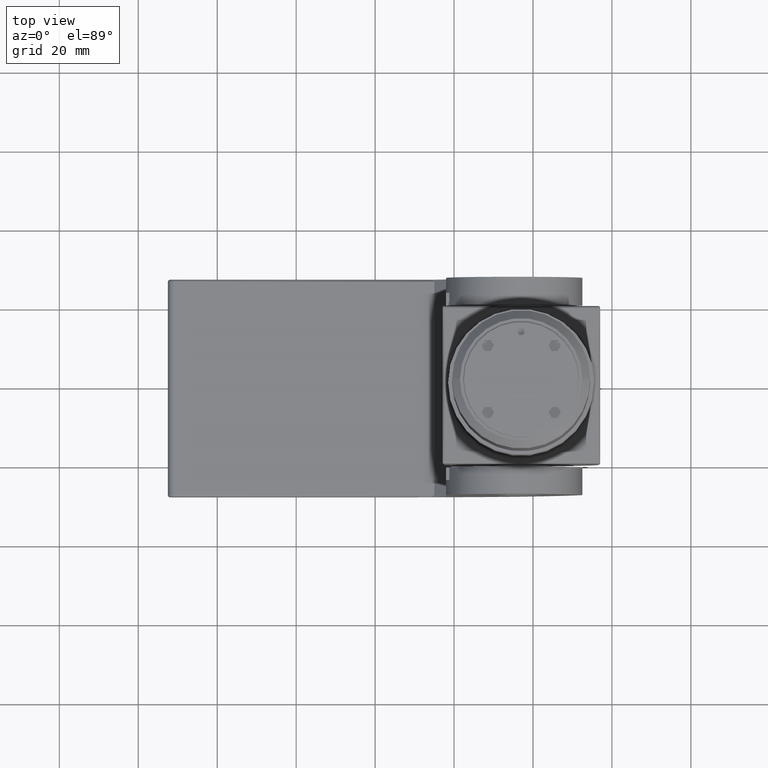
[diagram: clean part render]
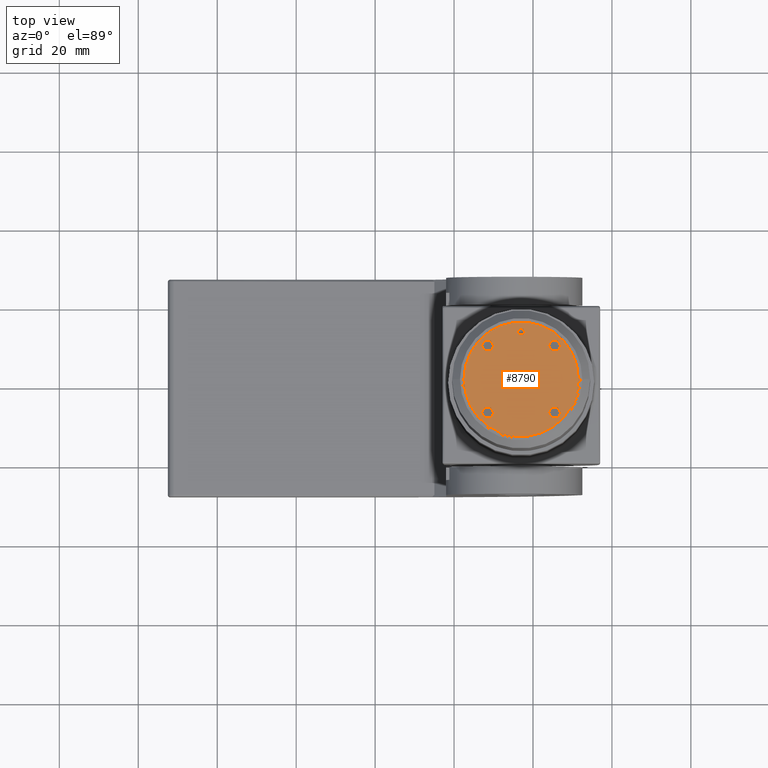
[diagram: same view with one face highlighted and labeled with its STEP entity id]
A machine part, top view. The second image highlights one B-rep face of the part: STEP entity #8790.
In plain terms, the highlighted planar face has unit normal (0, 0, 1).
Its self-contained STEP definition (entity closure, byte-faithful):
#173 = CARTESIAN_POINT ( 'NONE',  ( 8.485281374238581975, -8.485281374238553553, 83.00000000000000000 ) ) ;
#381 = CARTESIAN_POINT ( 'NONE',  ( 0.000000000000000000, 12.00000000000000000, 83.00000000000000000 ) ) ;
#1047 = EDGE_LOOP ( 'NONE', ( #2736, #18540 ) ) ;
#1106 = CARTESIAN_POINT ( 'NONE',  ( -10.03528137423864486, -8.485281374238496710, 83.00000000000000000 ) ) ;
#2011 = CARTESIAN_POINT ( 'NONE',  ( 0.000000000000000000, 0.000000000000000000, 83.00000000000000000 ) ) ;
#2142 = AXIS2_PLACEMENT_3D ( 'NONE', #9779, #15658, #9942 ) ;
#2210 = AXIS2_PLACEMENT_3D ( 'NONE', #21666, #14567, #10420 ) ;
#2361 = CARTESIAN_POINT ( 'NONE',  ( -14.50000000000002665, 0.000000000000000000, 83.00000000000000000 ) ) ;
#2736 = ORIENTED_EDGE ( 'NONE', *, *, #15073, .T. ) ;
#2818 = VERTEX_POINT ( 'NONE', #10587 ) ;
#3250 = DIRECTION ( 'NONE',  ( 1.000000000000000000, 0.000000000000000000, 0.000000000000000000 ) ) ;
#3340 = CIRCLE ( 'NONE', #2210, 1.550000000000000933 ) ;
#3536 = DIRECTION ( 'NONE',  ( 0.000000000000000000, 0.000000000000000000, 1.000000000000000000 ) ) ;
#3630 = VERTEX_POINT ( 'NONE', #3968 ) ;
#3667 = DIRECTION ( 'NONE',  ( 0.000000000000000000, 0.000000000000000000, 1.000000000000000000 ) ) ;
#3708 = VERTEX_POINT ( 'NONE', #15917 ) ;
#3759 = EDGE_CURVE ( 'NONE', #2818, #19452, #6592, .T. ) ;
#3887 = DIRECTION ( 'NONE',  ( 0.000000000000000000, 0.000000000000000000, 1.000000000000000000 ) ) ;
#3968 = CARTESIAN_POINT ( 'NONE',  ( 6.935281374238581265, -8.485281374238553553, 83.00000000000000000 ) ) ;
#3988 = CIRCLE ( 'NONE', #2142, 1.550000000000000933 ) ;
#3993 = AXIS2_PLACEMENT_3D ( 'NONE', #10206, #18105, #10032 ) ;
#3995 = DIRECTION ( 'NONE',  ( 0.000000000000000000, 0.000000000000000000, 1.000000000000000000 ) ) ;
#4256 = EDGE_LOOP ( 'NONE', ( #19303, #23739 ) ) ;
#4264 = AXIS2_PLACEMENT_3D ( 'NONE', #23245, #3667, #11293 ) ;
#4426 = CIRCLE ( 'NONE', #20048, 1.550000000000000933 ) ;
#4592 = CIRCLE ( 'NONE', #13828, 0.9499999999999890754 ) ;
#4738 = CIRCLE ( 'NONE', #13577, 0.9499999999999890754 ) ;
#4783 = EDGE_CURVE ( 'NONE', #23660, #3630, #15523, .T. ) ;
#4941 = VERTEX_POINT ( 'NONE', #16622 ) ;
#5094 = EDGE_CURVE ( 'NONE', #7873, #23646, #4426, .T. ) ;
#5133 = CARTESIAN_POINT ( 'NONE',  ( 0.000000000000000000, 0.000000000000000000, 83.00000000000000000 ) ) ;
#5751 = CIRCLE ( 'NONE', #4264, 1.550000000000000933 ) ;
#6002 = DIRECTION ( 'NONE',  ( 1.000000000000000000, 0.000000000000000000, 0.000000000000000000 ) ) ;
#6031 = PLANE ( 'NONE',  #15513 ) ;
#6201 = DIRECTION ( 'NONE',  ( 1.000000000000000000, 0.000000000000000000, 0.000000000000000000 ) ) ;
#6215 = EDGE_CURVE ( 'NONE', #24403, #15856, #19734, .T. ) ;
#6330 = ORIENTED_EDGE ( 'NONE', *, *, #14923, .F. ) ;
#6592 = CIRCLE ( 'NONE', #15787, 1.550000000000000933 ) ;
#7059 = AXIS2_PLACEMENT_3D ( 'NONE', #2011, #3887, #17623 ) ;
#7561 = ORIENTED_EDGE ( 'NONE', *, *, #18843, .F. ) ;
#7873 = VERTEX_POINT ( 'NONE', #20361 ) ;
#8790 = ADVANCED_FACE ( 'NONE', ( #9206, #21485, #16304, #16908, #23061, #20268 ), #6031, .T. ) ;
#8908 = VERTEX_POINT ( 'NONE', #1106 ) ;
#9166 = CIRCLE ( 'NONE', #12149, 1.550000000000000933 ) ;
#9206 = FACE_OUTER_BOUND ( 'NONE', #1047, .T. ) ;
#9600 = CARTESIAN_POINT ( 'NONE',  ( -6.935281374238643437, -8.485281374238496710, 83.00000000000000000 ) ) ;
#9724 = DIRECTION ( 'NONE',  ( 0.000000000000000000, 0.000000000000000000, 1.000000000000000000 ) ) ;
#9779 = CARTESIAN_POINT ( 'NONE',  ( 8.485281374238581975, -8.485281374238553553, 83.00000000000000000 ) ) ;
#9937 = VERTEX_POINT ( 'NONE', #9600 ) ;
#9942 = DIRECTION ( 'NONE',  ( -1.000000000000000000, 0.000000000000000000, 0.000000000000000000 ) ) ;
#10032 = DIRECTION ( 'NONE',  ( -3.357529308342205333E-15, -1.000000000000000000, 0.000000000000000000 ) ) ;
#10195 = DIRECTION ( 'NONE',  ( -0.000000000000000000, -0.000000000000000000, 1.000000000000000000 ) ) ;
#10206 = CARTESIAN_POINT ( 'NONE',  ( 8.485281374238581975, 8.485281374238555330, 83.00000000000000000 ) ) ;
#10420 = DIRECTION ( 'NONE',  ( 1.007258792502661639E-14, 1.000000000000000000, 0.000000000000000000 ) ) ;
#10587 = CARTESIAN_POINT ( 'NONE',  ( -6.935281374238583929, 8.485281374238553553, 83.00000000000000000 ) ) ;
#10809 = EDGE_LOOP ( 'NONE', ( #12772, #19911 ) ) ;
#11058 = DIRECTION ( 'NONE',  ( 1.000000000000000000, 0.000000000000000000, 0.000000000000000000 ) ) ;
#11293 = DIRECTION ( 'NONE',  ( 1.007258792502661639E-14, 1.000000000000000000, 0.000000000000000000 ) ) ;
#11758 = DIRECTION ( 'NONE',  ( 0.000000000000000000, 0.000000000000000000, 1.000000000000000000 ) ) ;
#11780 = DIRECTION ( 'NONE',  ( -1.000000000000000000, 0.000000000000000000, 0.000000000000000000 ) ) ;
#11865 = CARTESIAN_POINT ( 'NONE',  ( -8.485281374238585528, 8.485281374238553553, 83.00000000000000000 ) ) ;
#12149 = AXIS2_PLACEMENT_3D ( 'NONE', #11865, #23853, #6201 ) ;
#12405 = ORIENTED_EDGE ( 'NONE', *, *, #18990, .F. ) ;
#12772 = ORIENTED_EDGE ( 'NONE', *, *, #4783, .F. ) ;
#12885 = EDGE_LOOP ( 'NONE', ( #6330, #12405 ) ) ;
#13103 = ORIENTED_EDGE ( 'NONE', *, *, #19966, .F. ) ;
#13577 = AXIS2_PLACEMENT_3D ( 'NONE', #381, #10195, #15890 ) ;
#13828 = AXIS2_PLACEMENT_3D ( 'NONE', #15120, #17075, #11058 ) ;
#14352 = ORIENTED_EDGE ( 'NONE', *, *, #24901, .F. ) ;
#14567 = DIRECTION ( 'NONE',  ( 0.000000000000000000, 0.000000000000000000, 1.000000000000000000 ) ) ;
#14923 = EDGE_CURVE ( 'NONE', #4941, #3708, #4738, .T. ) ;
#15073 = EDGE_CURVE ( 'NONE', #15856, #24403, #15786, .T. ) ;
#15120 = CARTESIAN_POINT ( 'NONE',  ( 0.000000000000000000, 12.00000000000000000, 83.00000000000000000 ) ) ;
#15145 = AXIS2_PLACEMENT_3D ( 'NONE', #173, #9724, #11780 ) ;
#15321 = CARTESIAN_POINT ( 'NONE',  ( 8.485281374238581975, 8.485281374238555330, 83.00000000000000000 ) ) ;
#15513 = AXIS2_PLACEMENT_3D ( 'NONE', #15779, #3995, #21678 ) ;
#15523 = CIRCLE ( 'NONE', #15145, 1.550000000000000933 ) ;
#15658 = DIRECTION ( 'NONE',  ( 0.000000000000000000, 0.000000000000000000, 1.000000000000000000 ) ) ;
#15779 = CARTESIAN_POINT ( 'NONE',  ( 0.000000000000000000, 0.000000000000000000, 83.00000000000000000 ) ) ;
#15786 = CIRCLE ( 'NONE', #19807, 14.50000000000002665 ) ;
#15787 = AXIS2_PLACEMENT_3D ( 'NONE', #23564, #11758, #6002 ) ;
#15856 = VERTEX_POINT ( 'NONE', #2361 ) ;
#15890 = DIRECTION ( 'NONE',  ( 1.000000000000000000, 0.000000000000000000, 0.000000000000000000 ) ) ;
#15917 = CARTESIAN_POINT ( 'NONE',  ( -0.9499999999999890754, 12.00000000000000000, 83.00000000000000000 ) ) ;
#16304 = FACE_BOUND ( 'NONE', #4256, .T. ) ;
#16622 = CARTESIAN_POINT ( 'NONE',  ( 0.9499999999999890754, 12.00000000000000000, 83.00000000000000000 ) ) ;
#16908 = FACE_BOUND ( 'NONE', #10809, .T. ) ;
#17075 = DIRECTION ( 'NONE',  ( -0.000000000000000000, -0.000000000000000000, 1.000000000000000000 ) ) ;
#17265 = DIRECTION ( 'NONE',  ( -3.357529308342205333E-15, -1.000000000000000000, 0.000000000000000000 ) ) ;
#17623 = DIRECTION ( 'NONE',  ( 1.000000000000000000, 0.000000000000000000, 0.000000000000000000 ) ) ;
#17704 = EDGE_CURVE ( 'NONE', #3630, #23660, #3988, .T. ) ;
#17743 = EDGE_LOOP ( 'NONE', ( #14352, #13103 ) ) ;
#18050 = CARTESIAN_POINT ( 'NONE',  ( 6.935281374238581265, 8.485281374238555330, 83.00000000000000000 ) ) ;
#18105 = DIRECTION ( 'NONE',  ( 0.000000000000000000, 0.000000000000000000, 1.000000000000000000 ) ) ;
#18540 = ORIENTED_EDGE ( 'NONE', *, *, #6215, .T. ) ;
#18843 = EDGE_CURVE ( 'NONE', #19452, #2818, #9166, .T. ) ;
#18900 = ORIENTED_EDGE ( 'NONE', *, *, #3759, .F. ) ;
#18932 = DIRECTION ( 'NONE',  ( 0.000000000000000000, 0.000000000000000000, 1.000000000000000000 ) ) ;
#18990 = EDGE_CURVE ( 'NONE', #3708, #4941, #4592, .T. ) ;
#19303 = ORIENTED_EDGE ( 'NONE', *, *, #5094, .F. ) ;
#19452 = VERTEX_POINT ( 'NONE', #21210 ) ;
#19734 = CIRCLE ( 'NONE', #7059, 14.50000000000002665 ) ;
#19807 = AXIS2_PLACEMENT_3D ( 'NONE', #5133, #18932, #3250 ) ;
#19911 = ORIENTED_EDGE ( 'NONE', *, *, #17704, .F. ) ;
#19966 = EDGE_CURVE ( 'NONE', #8908, #9937, #5751, .T. ) ;
#20048 = AXIS2_PLACEMENT_3D ( 'NONE', #15321, #3536, #17265 ) ;
#20268 = FACE_BOUND ( 'NONE', #21999, .T. ) ;
#20361 = CARTESIAN_POINT ( 'NONE',  ( 10.03528137423858269, 8.485281374238555330, 83.00000000000000000 ) ) ;
#21210 = CARTESIAN_POINT ( 'NONE',  ( -10.03528137423858624, 8.485281374238553553, 83.00000000000000000 ) ) ;
#21259 = CARTESIAN_POINT ( 'NONE',  ( 14.50000000000002665, 1.791045943753005880E-15, 83.00000000000000000 ) ) ;
#21417 = CIRCLE ( 'NONE', #3993, 1.550000000000000933 ) ;
#21485 = FACE_BOUND ( 'NONE', #12885, .T. ) ;
#21666 = CARTESIAN_POINT ( 'NONE',  ( -8.485281374238644148, -8.485281374238496710, 83.00000000000000000 ) ) ;
#21678 = DIRECTION ( 'NONE',  ( 1.000000000000000000, 0.000000000000000000, -0.000000000000000000 ) ) ;
#21999 = EDGE_LOOP ( 'NONE', ( #18900, #7561 ) ) ;
#23061 = FACE_BOUND ( 'NONE', #17743, .T. ) ;
#23245 = CARTESIAN_POINT ( 'NONE',  ( -8.485281374238644148, -8.485281374238496710, 83.00000000000000000 ) ) ;
#23564 = CARTESIAN_POINT ( 'NONE',  ( -8.485281374238585528, 8.485281374238553553, 83.00000000000000000 ) ) ;
#23646 = VERTEX_POINT ( 'NONE', #18050 ) ;
#23660 = VERTEX_POINT ( 'NONE', #23843 ) ;
#23739 = ORIENTED_EDGE ( 'NONE', *, *, #25357, .F. ) ;
#23843 = CARTESIAN_POINT ( 'NONE',  ( 10.03528137423858269, -8.485281374238553553, 83.00000000000000000 ) ) ;
#23853 = DIRECTION ( 'NONE',  ( 0.000000000000000000, 0.000000000000000000, 1.000000000000000000 ) ) ;
#24403 = VERTEX_POINT ( 'NONE', #21259 ) ;
#24901 = EDGE_CURVE ( 'NONE', #9937, #8908, #3340, .T. ) ;
#25357 = EDGE_CURVE ( 'NONE', #23646, #7873, #21417, .T. ) ;